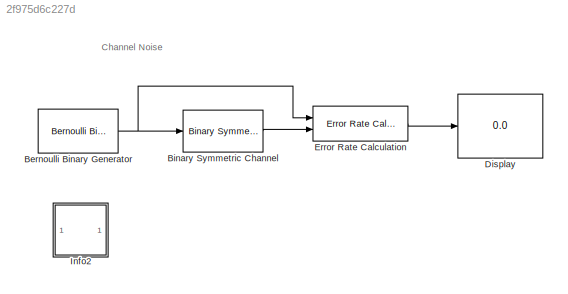
MODEL slx_2f975d6c227d
KIND model
BLOCK [Display]  Display
  Decimation = 1
  Ports = [1]
BLOCK [Reference] Bernoulli Binary Generator  REF=commrandsrc2/Bernoulli Binary
Generator
  P = 0.5
  Ports = [0, 1]
  SourceBlock = commrandsrc2/Bernoulli Binary\nGenerator
  SourceType = Bernoulli Binary Generator
  Ts = 1
  frameBased = off
  orient = off
  outDataType = double
  sampPerFrame = 1
  seed = 61
BLOCK [Reference] Binary Symmetric Channel  REF=commchan3/Binary Symmetric
Channel
  E = off
  P = 0.01
  Ports = [1, 1]
  SourceBlock = commchan3/Binary Symmetric\nChannel
  SourceType = Binary Symmetric Channel
  outDtype = double
  s = 2137
BLOCK [Reference] Error Rate Calculation  REF=commsink2/Error Rate
Calculation
  N = 0
  PMode = Port
  Ports = [2, 1]
  RsMode2 = off
  SourceBlock = commsink2/Error Rate\nCalculation
  SourceType = Error Rate Calculation
  WsName = ErrorVec
  cp_mode = Entire frame
  maxBits = 1e6
  numErr = 100
  st_delay = 0
  stop = on
  subframe = []
BLOCK [SubSystem] Info2
  AncestorBlock = commblksprivate/Info
  OpenFcn = helpview([docroot '/toolbox/comm/comm.map'], 'doc_channel')
  Ports = []
  RequestExecContextInheritance = off
ANNOTATION (root): Channel Noise
NET Bernoulli Binary Generator:1 -> Binary Symmetric Channel:1, Error Rate Calculation:1
LINE Binary Symmetric Channel:1 -> Error Rate Calculation:2
LINE Error Rate Calculation:1 ->  Display:1
note: NET lines group one-source signal fan-out (src -> all destinations, sorted); 1:1 wires keep LINE
